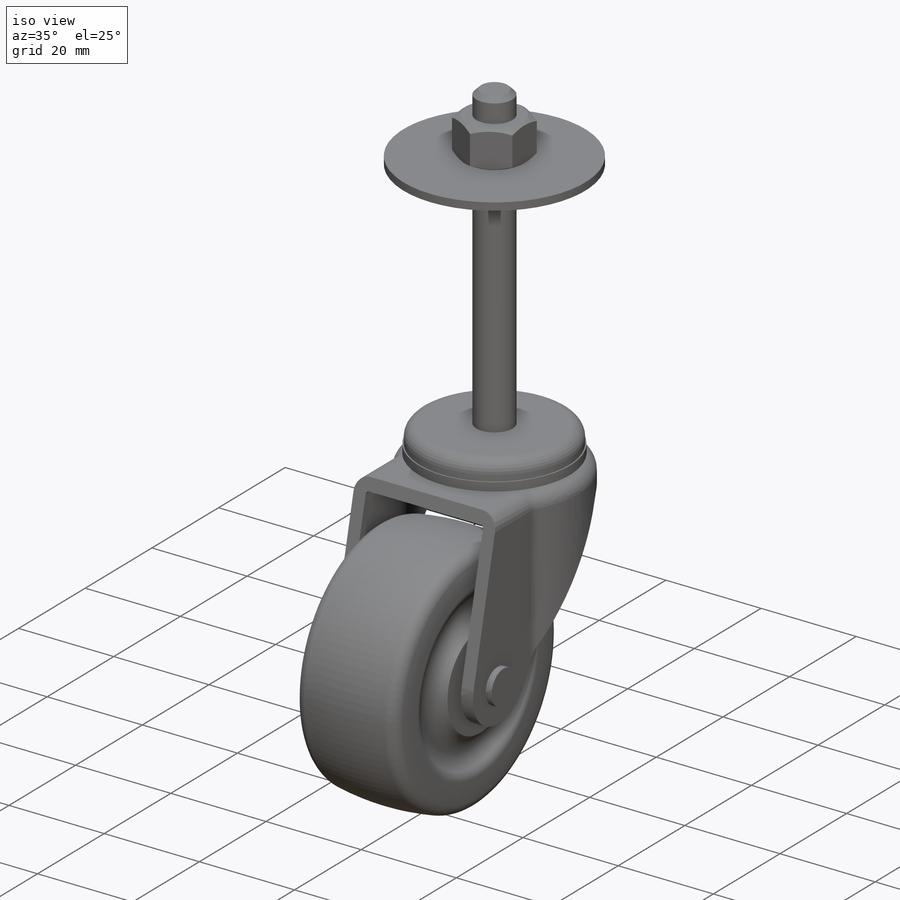
[diagram: iso view]
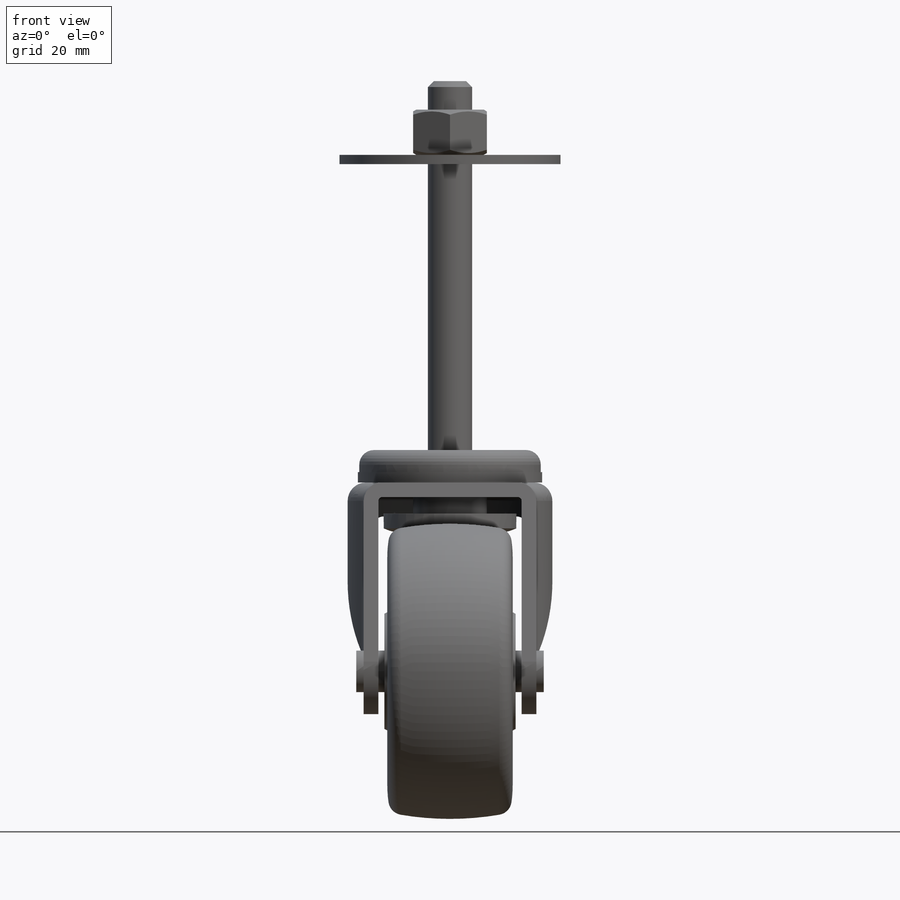
[diagram: front view]
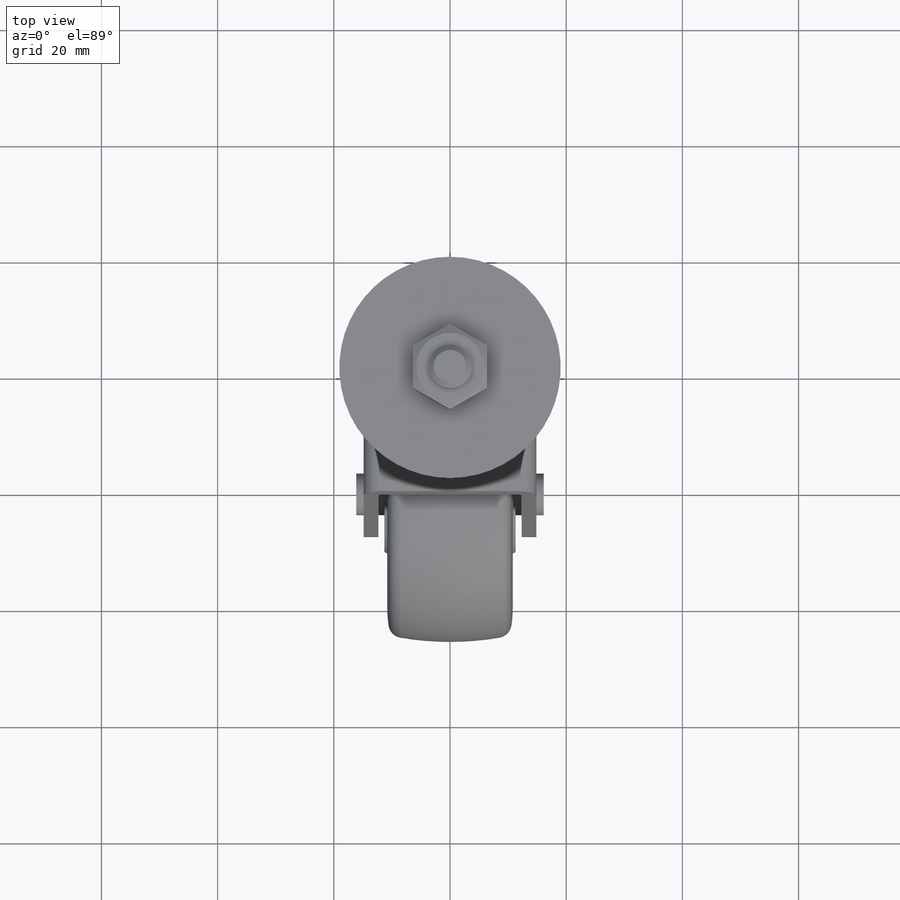
[diagram: top view]
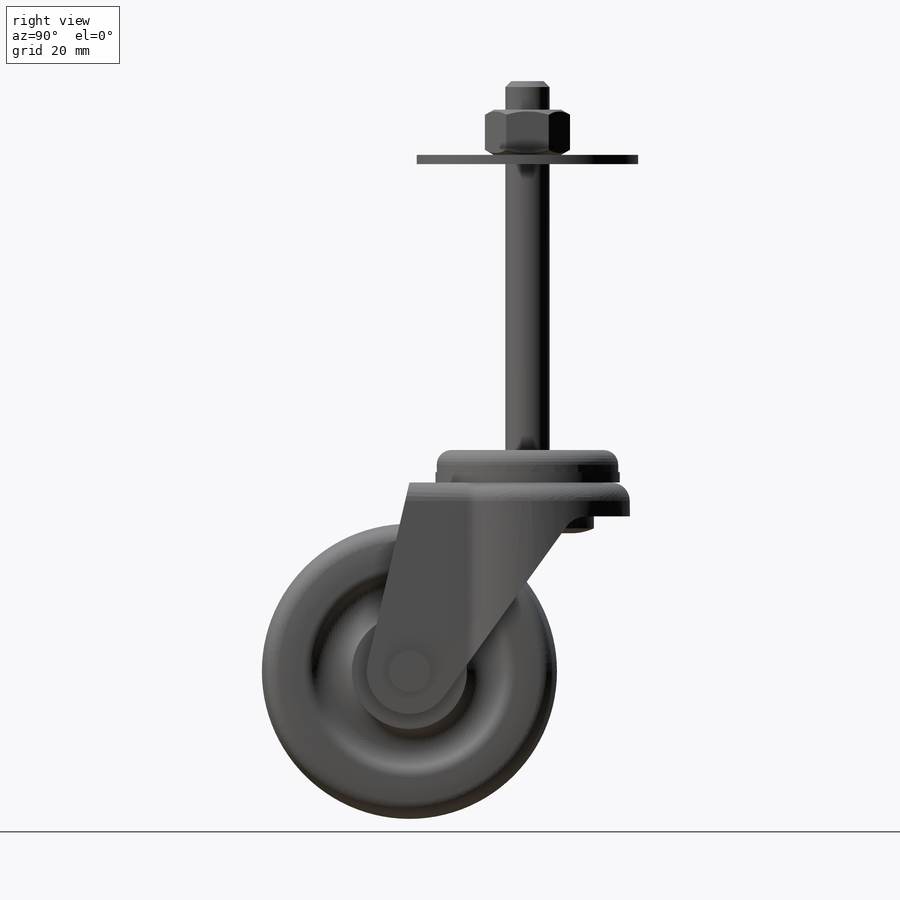
[diagram: right view]
SOLIDWORKS PART (.sldprt)
format: sldprt  version: not decoded by parser v0  size: 1,169,920 bytes
history: native  units: mm
features: sketch x10, extrude x6, plane x4, fillet x2, revolve x2, material x1, cut_extrude x1, shell x1, chamfer x1, cut_revolve x1 (+10 scaffold rows collapsed)
feature tree (39):
  scaffold x10  (default folders/planes/origin — collapsed)
  material  "Material <not specified>"
  plane  "FRONT"
  plane  "TOP"
  plane  "RIGHT"
  sketch  "Sketch1"  dims[D1=35.2552mm]
  extrude  "Base-Extrude"  Depth=33.02mm
  sketch  "Sketch2"  dims[c1.D5=14.732mm c1.D7=127.0mm c1.D8=127.0mm c1.D1=50.8mm c2.D7=50.8mm c2.D4=50.8mm c2.D1=6.35mm c2.D2=20.32mm c2.D3=79.248mm c3.D4=38.1mm c3.D6=57.15mm c4.D6=~121.804443deg c5.D6=~53.999285mm c6.D6=30.0deg c6.D8=15.875mm c6.D7=63.5mm c7.D8=150.368mm c7.D7=63.5mm c7.D3=21.082mm c7.D6=11.43mm c8.D3=9.652mm c8.D4=45.72mm]
  extrude  "Boss-Extrude1"  Depth=29.718mm
  sketch  "Sketch3"  dims[c1.D3=38.1mm c1.D4=152.4mm c2.D3=12.7mm c2.D5=304.8mm c2.D1=38.1mm c2.D2=101.6mm c3.D3=20.32mm c3.D4=38.1mm c4.D3=5.08mm c4.D4=10.16mm c4.D2=101.6mm c5.D3=~66.378796mm]
  cut_extrude  "Cut-Extrude1"  Depth=76.2mm
  fillet  "Fillet1"  Radius=3.175mm
  fillet  "Fillet2"  Radius=4.064mm
  shell  "Shell1"  Thickness=2.54mm
  plane  "Plane1"
  sketch  "Sketch4"  dims[D1=6.35mm]
  extrude  "Boss-Extrude2"  [1 undecoded]
  sketch  "Sketch6"  dims[c1.D15=9.525mm c1.D18=~11.692008mm c1.D21=2.032mm c1.D22=3.048mm c1.D23=3.048mm c1.D24=0.762mm c1.D25=2.032mm c1.D4=9.906mm c1.D9=~11.692008mm c2.D25=9.906mm c2.D26=1.524mm c2.D30=6.35mm c2.D34=1.778mm c2.D9=2.54mm c2.D6=50.8mm c2.D1=63.5mm c2.D2=31.75mm c2.D3=15.5575mm c2.D4=11.1125mm c2.D5=22.225mm c3.D6=0.762mm c3.D7=0.762mm c3.D8=25.4mm c3.D9=19.05mm c4.D8=12.7mm c4.D9=6.35mm c4.D10=25.4mm c4.D11=25.4mm c5.D11=55.0deg c5.D12=25.4mm c6.D12=55.0deg c6.D13=15.24mm c6.D14=14.224mm c6.D16=30.48mm c6.D17=4.826mm c7.D13=11.684mm c7.D14=11.684mm c7.D15=15.748mm c7.D17=~64.180767mm c7.D11=9.652mm c7.D12=9.652mm c8.D17=15.748mm c8.D18=~15.936691mm c8.D19=16.002mm c8.D20=28.575mm c8.D21=12.7mm c8.D2=15.875mm c8.D3=15.875mm c8.D9=6.35mm c8.D23=6.35mm c9.D9=11.1125mm c9.D23=11.1125mm c9.D2=11.1125mm c9.D3=22.225mm c9.D5=15.875mm c10.D9=31.75mm c10.D23=6.35mm c10.D25=19.05mm c10.D26=20.32mm c10.D27=20.32mm c11.D26=149.225mm c11.D27=8.382mm c11.D28=~4.67774mm c11.D2=~10.881638mm c11.D3=20.066mm c11.D6=20.066mm c11.D7=101.6mm c11.D8=2.54mm c11.D23=0.127mm c12.D28=0.127mm c12.D29=12.7mm c12.D30=~17.991422mm c13.D29=2.54mm c13.D30=12.7mm c13.D31=12.7mm c13.D32=~1.909358mm c14.D29=~2.549743mm c14.D31=0.762mm c14.D32=11.684mm c14.D33=1.778mm c14.D34=5.08mm c14.D35=0.508mm c14.D1=22.606mm c14.D2=19.812mm c14.D3=2.413mm c14.D4=21.59mm c14.D5=7.112mm c14.D6=1.27mm c14.D7=2.54mm c14.D8=~10.246946mm c15.D6=50.8mm]
  revolve  "Boss-Revolve1"  Angle=360deg
  sketch  "Sketch8"  dims[c1.D6=~10.69462mm c1.D8=~10.097898mm c1.D2=2.54mm c2.D8=9.525mm c2.D1=7.62mm c2.D2=20.32mm c2.D3=31.75mm c2.D4=25.4mm c2.D5=7.62mm c3.D2=20.32mm c3.D7=12.7mm c3.D8=5.08mm c3.D6=39.751mm c4.D7=25.4mm c4.D9=0.254mm c4.D11=12.7mm c4.D12=0.127mm c4.D13=1.778mm c5.D7=22.86mm c5.D9=~5.373198mm c5.D3=0.254mm c5.D12=31.75mm c5.D4=63.5mm c5.D6=4.826mm c5.D10=2.54mm]
  revolve  "Boss-Revolve2"  Angle=360deg
  chamfer  "Chamfer1"  Distance=1.016mm Angle=45deg
  sketch  "Sketch9"  dims[D1=12.7mm]
  extrude  "Boss-Extrude3"  Depth=7.7978mm
  sketch  "Sketch10"  dims[c1.D1=1.524mm c1.D2=~2.717477mm c2.D2=30.0deg c2.D3=~2.717477mm c3.D3=30.0deg c3.D4=1.524mm c3.D5=~22.495056mm c3.D1=~0.879882mm c3.D2=1.524mm c4.D3=1.524mm]
  cut_revolve  "Cut-Revolve1"  Angle=360deg
  sketch  "Sketch12"
  extrude  "Extrude1"  Depth=32.258mm
  sketch  "Sketch13"  dims[D1=38.1mm]
  extrude  "Boss-Extrude4"  Depth=1.5875mm
decode coverage: 22 of 24 modeling features carry decoded parameters
note: ~ marks probable driven/reference dimensions
note: 1 parameter value undecoded
note: suppression state not decoded; provenance and decode notes live in map.json
